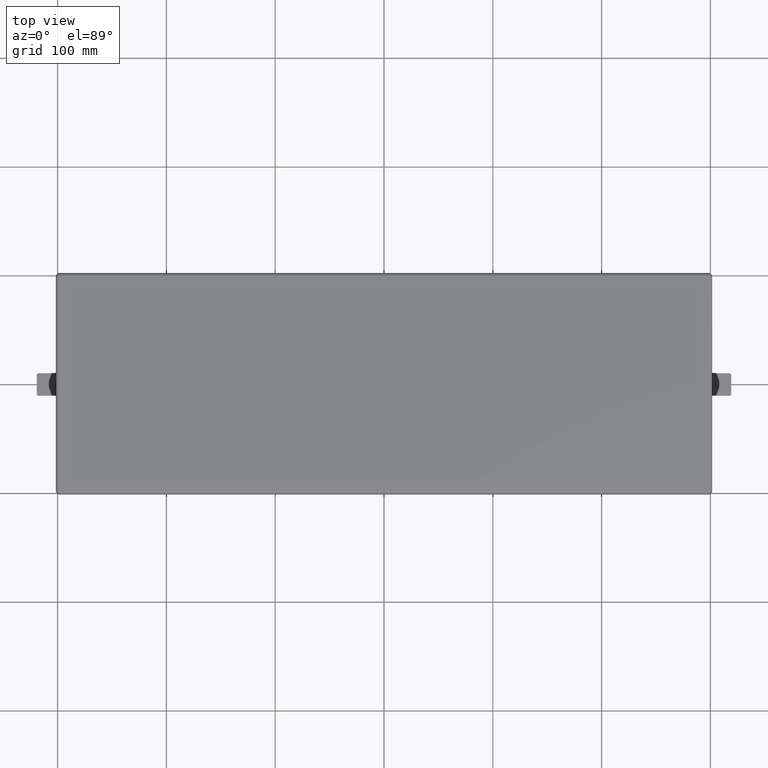
[diagram: clean part render]
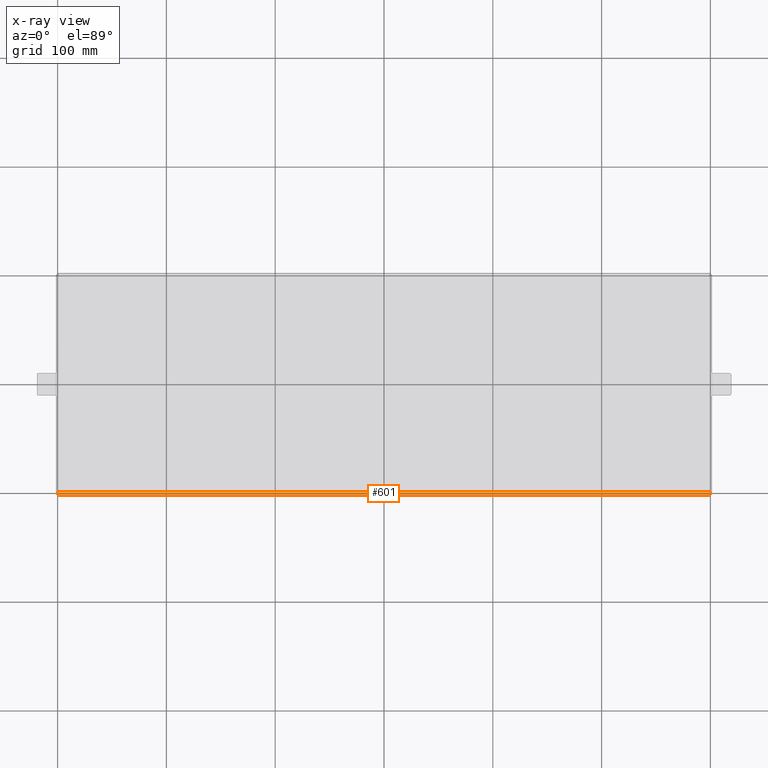
[diagram: x-ray — body ghosted, one internal face saturated and labeled with its STEP entity id]
A machine part, top view, then the same camera in x-ray: the body is ghosted and one INTERNAL B-rep face — a face not visible from any outside direction — is saturated and labeled: STEP entity #601.
In plain terms, the highlighted planar face has unit normal (0, 0, -1).
Its self-contained STEP definition (entity closure, byte-faithful):
#44 = CARTESIAN_POINT ( 'NONE',  ( -11.87500000000000000, -4.000000000000000000, 0.0000000000000000000 ) ) ;
#158 = VERTEX_POINT ( 'NONE', #3335 ) ;
#227 = CARTESIAN_POINT ( 'NONE',  ( 11.78374999999999950, -3.939999999999999947, 0.0000000000000000000 ) ) ;
#276 = VECTOR ( 'NONE', #3766, 39.37007874015748143 ) ;
#303 = DIRECTION ( 'NONE',  ( 0.0000000000000000000, 0.0000000000000000000, -1.000000000000000000 ) ) ;
#352 = ORIENTED_EDGE ( 'NONE', *, *, #3553, .F. ) ;
#355 = CARTESIAN_POINT ( 'NONE',  ( 11.78374999999999950, -3.936928575112999873, 0.0000000000000000000 ) ) ;
#539 = CARTESIAN_POINT ( 'NONE',  ( 0.0000000000000000000, -3.939999999999999947, 0.0000000000000000000 ) ) ;
#591 = CARTESIAN_POINT ( 'NONE',  ( 0.0000000000000000000, -3.970000000000000195, 0.0000000000000000000 ) ) ;
#601 = ADVANCED_FACE ( 'NONE', ( #3114 ), #1505, .T. ) ;
#763 = LINE ( 'NONE', #823, #3113 ) ;
#823 = CARTESIAN_POINT ( 'NONE',  ( -11.78374999999999950, -3.936928575112999873, 0.0000000000000000000 ) ) ;
#875 = EDGE_LOOP ( 'NONE', ( #352, #2077, #3757, #2500 ) ) ;
#997 = CARTESIAN_POINT ( 'NONE',  ( 11.78374999999999950, -4.000000000000000000, 0.0000000000000000000 ) ) ;
#1031 = DIRECTION ( 'NONE',  ( -0.0000000000000000000, 1.000000000000000000, -0.0000000000000000000 ) ) ;
#1091 = CARTESIAN_POINT ( 'NONE',  ( -11.78374999999999950, -3.939999999999999947, 0.0000000000000000000 ) ) ;
#1505 = PLANE ( 'NONE',  #3563 ) ;
#1546 = LINE ( 'NONE', #44, #276 ) ;
#1600 = LINE ( 'NONE', #355, #3972 ) ;
#1759 = DIRECTION ( 'NONE',  ( 0.0000000000000000000, -1.000000000000000000, 0.0000000000000000000 ) ) ;
#1893 = EDGE_CURVE ( 'NONE', #2364, #3525, #1600, .T. ) ;
#2077 = ORIENTED_EDGE ( 'NONE', *, *, #2801, .F. ) ;
#2313 = VECTOR ( 'NONE', #2441, 39.37007874015748143 ) ;
#2364 = VERTEX_POINT ( 'NONE', #997 ) ;
#2441 = DIRECTION ( 'NONE',  ( 1.000000000000000000, -0.0000000000000000000, 0.0000000000000000000 ) ) ;
#2500 = ORIENTED_EDGE ( 'NONE', *, *, #1893, .F. ) ;
#2540 = VERTEX_POINT ( 'NONE', #1091 ) ;
#2748 = DIRECTION ( 'NONE',  ( -1.000000000000000000, 0.0000000000000000000, -0.0000000000000000000 ) ) ;
#2801 = EDGE_CURVE ( 'NONE', #2540, #158, #763, .T. ) ;
#2985 = EDGE_CURVE ( 'NONE', #2540, #3525, #3922, .T. ) ;
#3113 = VECTOR ( 'NONE', #1759, 39.37007874015748143 ) ;
#3114 = FACE_OUTER_BOUND ( 'NONE', #875, .T. ) ;
#3335 = CARTESIAN_POINT ( 'NONE',  ( -11.78374999999999950, -4.000000000000000000, 0.0000000000000000000 ) ) ;
#3525 = VERTEX_POINT ( 'NONE', #227 ) ;
#3553 = EDGE_CURVE ( 'NONE', #158, #2364, #1546, .T. ) ;
#3563 = AXIS2_PLACEMENT_3D ( 'NONE', #591, #303, #2748 ) ;
#3757 = ORIENTED_EDGE ( 'NONE', *, *, #2985, .T. ) ;
#3766 = DIRECTION ( 'NONE',  ( 1.000000000000000000, 0.0000000000000000000, 0.0000000000000000000 ) ) ;
#3922 = LINE ( 'NONE', #539, #2313 ) ;
#3972 = VECTOR ( 'NONE', #1031, 39.37007874015748143 ) ;